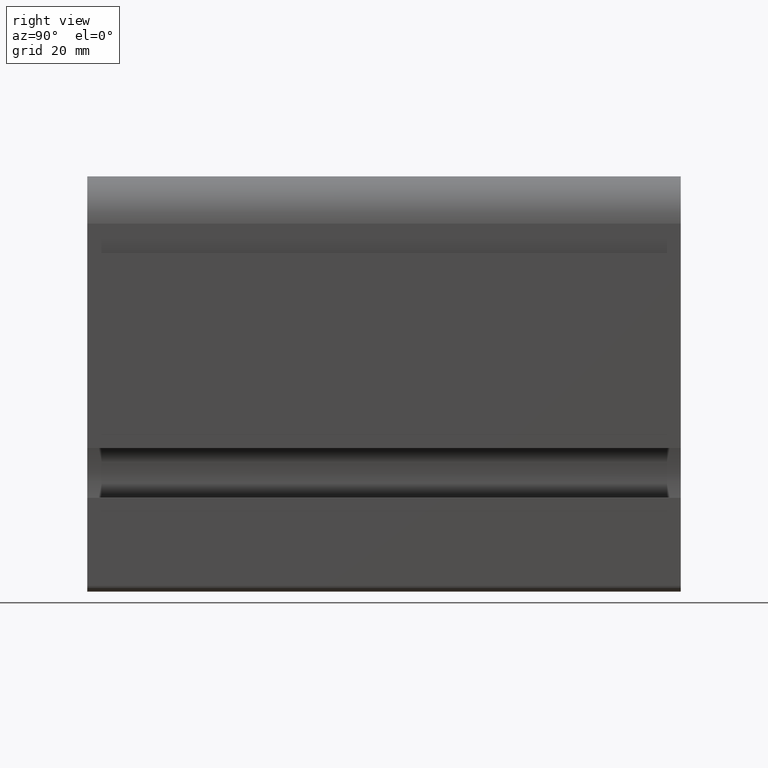
[diagram: clean part render]
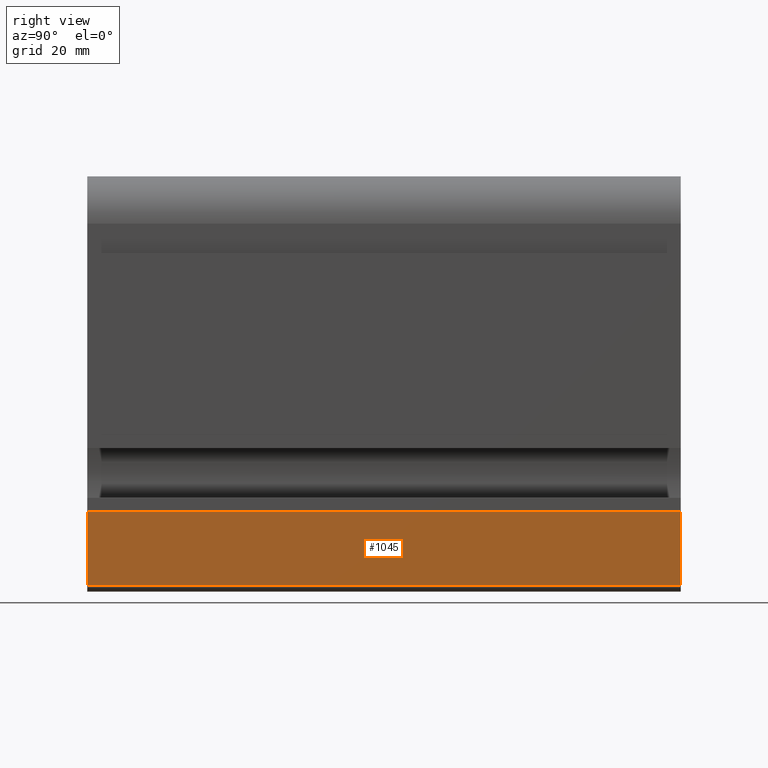
[diagram: same view with one face highlighted and labeled with its STEP entity id]
A machine part, right view. The second image highlights one B-rep face of the part: STEP entity #1045.
In plain terms, the highlighted planar face has unit normal (1, 0, 0).
Its self-contained STEP definition (entity closure, byte-faithful):
#126=FACE_OUTER_BOUND('',#179,.T.);
#179=EDGE_LOOP('',(#811,#812,#813,#814));
#272=LINE('',#1697,#379);
#273=LINE('',#1700,#380);
#274=LINE('',#1702,#381);
#275=LINE('',#1703,#382);
#379=VECTOR('',#1391,10.);
#380=VECTOR('',#1394,10.);
#381=VECTOR('',#1395,10.);
#382=VECTOR('',#1396,10.);
#488=VERTEX_POINT('',#1693);
#489=VERTEX_POINT('',#1695);
#490=VERTEX_POINT('',#1699);
#491=VERTEX_POINT('',#1701);
#624=EDGE_CURVE('',#488,#489,#272,.T.);
#625=EDGE_CURVE('',#488,#490,#273,.T.);
#626=EDGE_CURVE('',#491,#489,#274,.T.);
#627=EDGE_CURVE('',#490,#491,#275,.T.);
#811=ORIENTED_EDGE('',*,*,#625,.F.);
#812=ORIENTED_EDGE('',*,*,#624,.T.);
#813=ORIENTED_EDGE('',*,*,#626,.F.);
#814=ORIENTED_EDGE('',*,*,#627,.F.);
#997=PLANE('',#1154);
#1045=ADVANCED_FACE('',(#126),#997,.T.);
#1154=AXIS2_PLACEMENT_3D('',#1698,#1392,#1393);
#1391=DIRECTION('',(0.,1.,0.));
#1392=DIRECTION('center_axis',(1.,0.,7.7715611723761E-16));
#1393=DIRECTION('ref_axis',(7.7715611723761E-16,0.,-1.));
#1394=DIRECTION('',(-7.7715611723761E-16,0.,1.));
#1395=DIRECTION('',(7.7715611723761E-16,0.,-1.));
#1396=DIRECTION('',(0.,1.,0.));
#1693=CARTESIAN_POINT('',(4.16333634234434E-15,0.,-56.));
#1695=CARTESIAN_POINT('',(4.16333634234434E-15,100.,-56.));
#1697=CARTESIAN_POINT('',(4.16333634234434E-15,0.,-56.));
#1698=CARTESIAN_POINT('Origin',(-5.55111512312579E-15,0.,-43.5));
#1699=CARTESIAN_POINT('',(-5.55111512312579E-15,0.,-43.5));
#1700=CARTESIAN_POINT('',(4.16333634234434E-15,0.,-56.));
#1701=CARTESIAN_POINT('',(-5.55111512312579E-15,100.,-43.5));
#1702=CARTESIAN_POINT('',(4.16333634234434E-15,100.,-56.));
#1703=CARTESIAN_POINT('',(-5.55111512312579E-15,0.,-43.5));